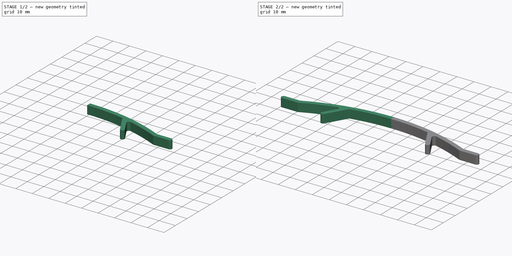
[diagram: build sequence overview — one tinted view per stage of 2, left to right]
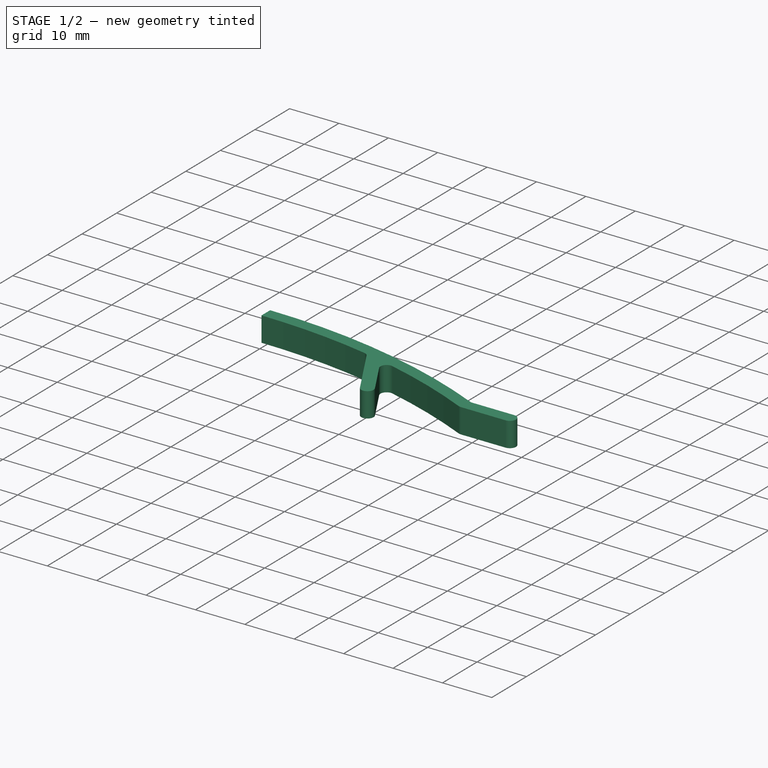
[diagram: stage 1 of 2 — iso view after this stage's code; geometry added in this stage tinted green]
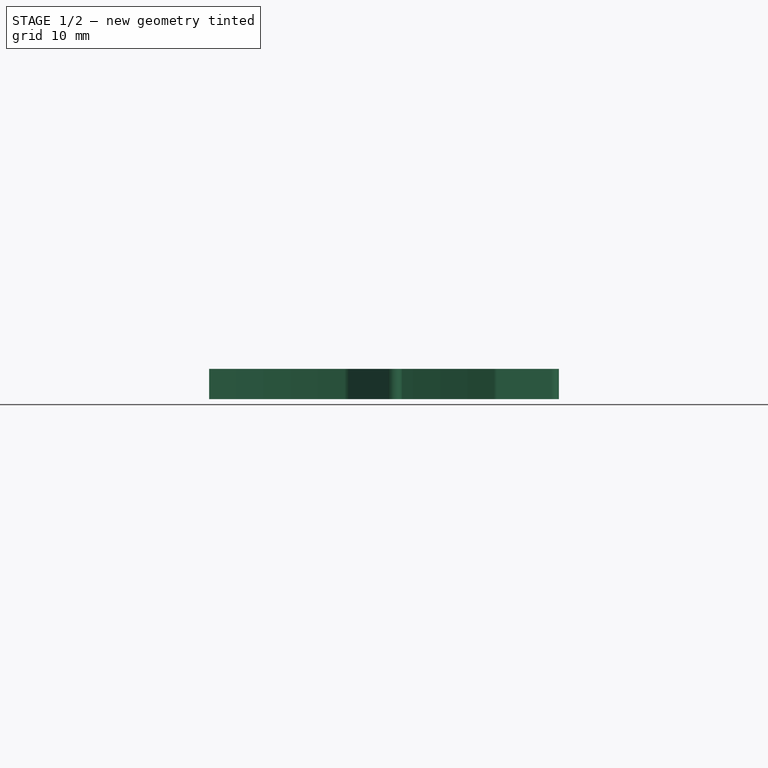
[diagram: stage 1 of 2 — front view after this stage's code; geometry added in this stage tinted green]
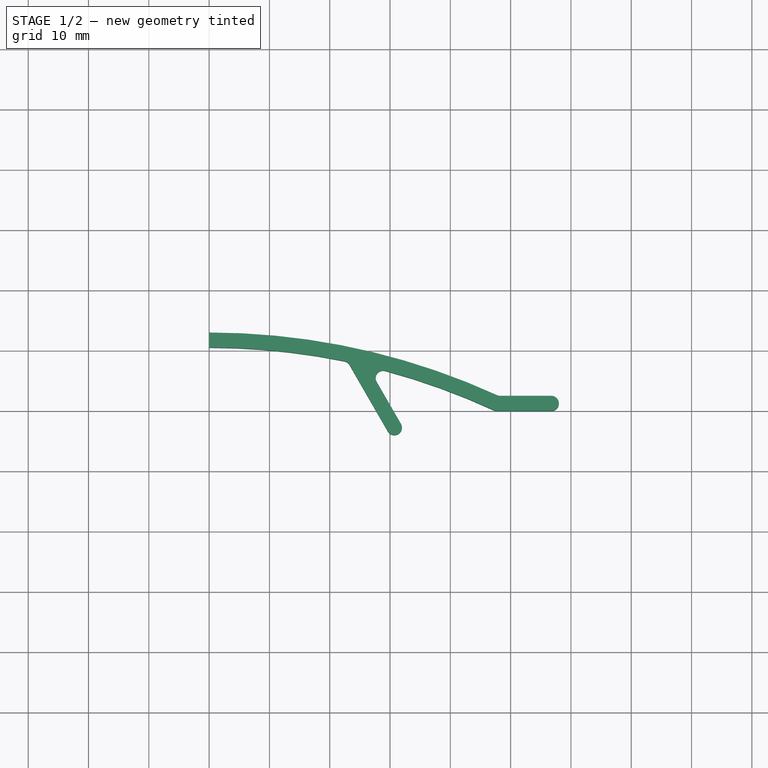
[diagram: stage 1 of 2 — top view after this stage's code; geometry added in this stage tinted green]
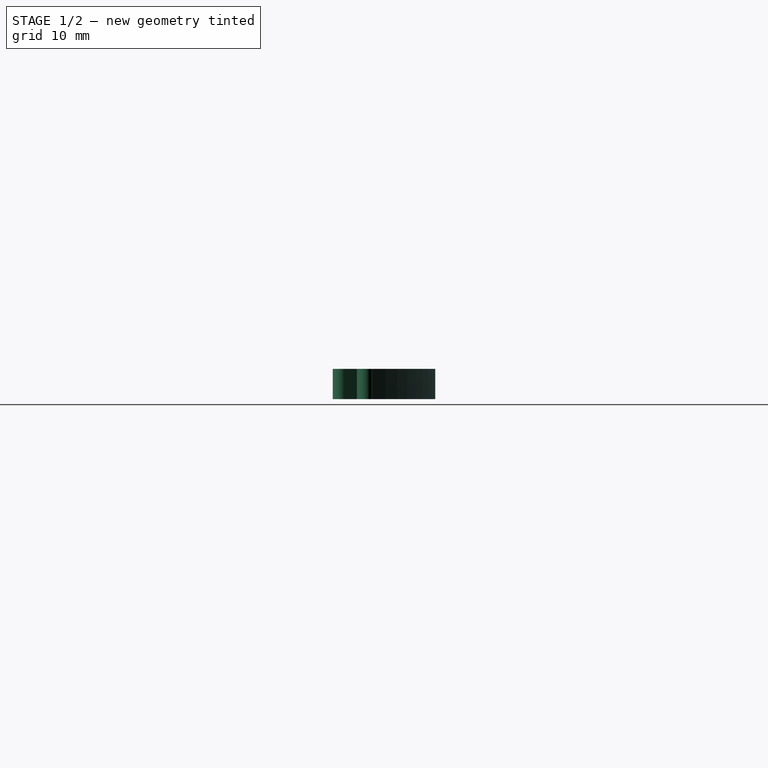
[diagram: stage 1 of 2 — right view after this stage's code; geometry added in this stage tinted green]
FCSTD DOCUMENT  (FreeCAD 1.0R39319 (Git))
Label: Carrier_Clamp
License: All rights reserved
LicenseURL: https://en.wikipedia.org/wiki/All_rights_reserved
objects: App::Link×1, Sketcher::SketchObject×1, PartDesign::Pad×1, PartDesign::Fillet×1, PartDesign::Mirrored×1, PartDesign::Body×1, App::Part×1
note: 11 computed .brp shape members not serialized (recipe doc carries the construction recipe); baked Part::Feature solids carry a one-line shape summary decoded from their .brp
EXTERNAL_REF file=Parameters.FCStd obj=Spreadsheet

FEATURE [App::Link] Link
  LinkedObject = -> <external Parameters.FCStd>#Spreadsheet
FEATURE [Sketcher::SketchObject] Sketch
  ArcFitTolerance = 1e-06
  AttachmentSupport = -> [XY_Plane001]
  FullyConstrained = true
  MakeInternals = false
  MapMode = 5
  sketch-geometry (10):
    g0: LineSegment StartX=0 StartY=10.5 StartZ=0 EndX=0 EndY=13 EndZ=0
    g1: ArcOfCircle CenterX=-7e-15 CenterY=-101.964 CenterZ=0 NormalX=0 NormalY=0 NormalZ=1 AngleXU=0 Radius=114.964 StartAngle=1.14008 EndAngle=1.5708
    g2: LineSegment StartX=48 StartY=2.5 StartZ=0 EndX=58 EndY=2.5 EndZ=0
    g3: LineSegment StartX=58 StartY=2.5 StartZ=0 EndX=58 EndY=-1.7053e-12 EndZ=0
    g4: LineSegment StartX=58 StartY=-1.7053e-12 StartZ=0 EndX=47.45 EndY=-1.7053e-12 EndZ=0
    g5: ArcOfCircle CenterX=-6.9e-15 CenterY=-101.964 CenterZ=0 NormalX=0 NormalY=0 NormalZ=1 AngleXU=0 Radius=112.464 StartAngle=1.36483 EndAngle=1.5708
    g6: LineSegment StartX=23.0009 StartY=8.12284 StartZ=0 EndX=30 EndY=-4 EndZ=0
    g7: LineSegment StartX=30 StartY=-4 StartZ=0 EndX=32.8868 EndY=-4 EndZ=0
    g8: LineSegment StartX=32.8868 StartY=-4 StartZ=0 EndX=26.3181 EndY=7.37725 EndZ=0
    g9: ArcOfCircle CenterX=0 CenterY=-101.964 CenterZ=0 NormalX=0 NormalY=0 NormalZ=1 AngleXU=0 Radius=112.464 StartAngle=1.13524 EndAngle=1.33459
  constraints (31):
    c: PointOnObject(g0,g-2)
    c: PointOnObject(g0,g-2)
    c: Perpendicular(g0,g1) = 1.5708
    c: Coincident(g1,g2)
    c: Horizontal(g2)
    c: Coincident(g2,g3)
    c: Coincident(g3,g4)
    c: Horizontal(g4)
    c: Perpendicular(g0,g5) = 1.5708
    c: Coincident(g5,g6)
    c: Coincident(g6,g7)
    c: Horizontal(g7)
    c: Coincident(g7,g8)
    c: Coincident(g9,g4)
    c: Coincident(g9,g8)
    c: Distance(g3,g2) = 2.5
    c: Distance(g7,g6) = 2.5
    c: Angle(g-2,g6) = 0.523599
    c: Parallel(g6,g8)
    c: Distance(g5,g1) = 2.5
    c: Distance(g0,g-1) = 13
    c: PointOnObject(g3,g-1)
    c: Vertical(g3)
    c: Distance(g-1,g3) = 58
    c: Distance(g1,g3) = 10
    c: Distance(g-1,g7) = 4
    c: Distance(g0,g0) = 2.5
    c: DistanceX(g-1,g6) = 30
    c: Tangent(g9,g5)
    c: DistanceX(g-1,g9) = 0
    c: DistanceY(g1,g9) = 0
FEATURE [PartDesign::Pad] Pad
  Direction = (0,0,1)
  Length = 5
  Length2 = 10
  Profile = -> Sketch
  ReferenceAxis = -> Sketch [N_Axis]
  Refine = true
  Suppressed = false
  Type = 0
FEATURE [PartDesign::Fillet] Fillet
  Base = -> Pad [Edge23,Edge26,Edge20,Edge14,Edge11,Edge17,Edge5,Edge8]
  BaseFeature = -> Pad
  Radius = 1.24
  Refine = true
  SupportTransform = false
  Suppressed = false
  UseAllEdges = false
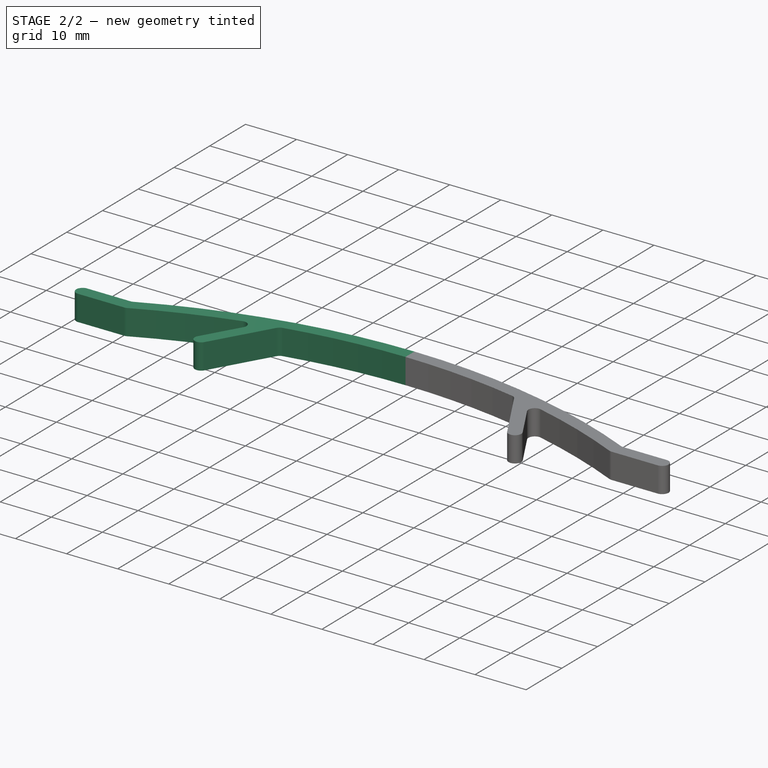
[diagram: stage 2 of 2 — iso view after this stage's code; geometry added in this stage tinted green]
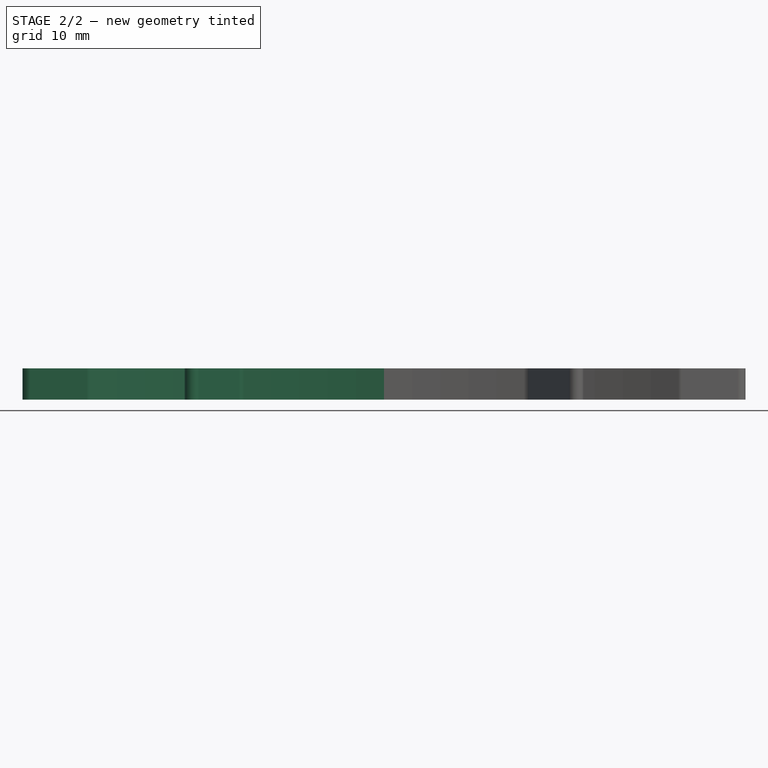
[diagram: stage 2 of 2 — front view after this stage's code; geometry added in this stage tinted green]
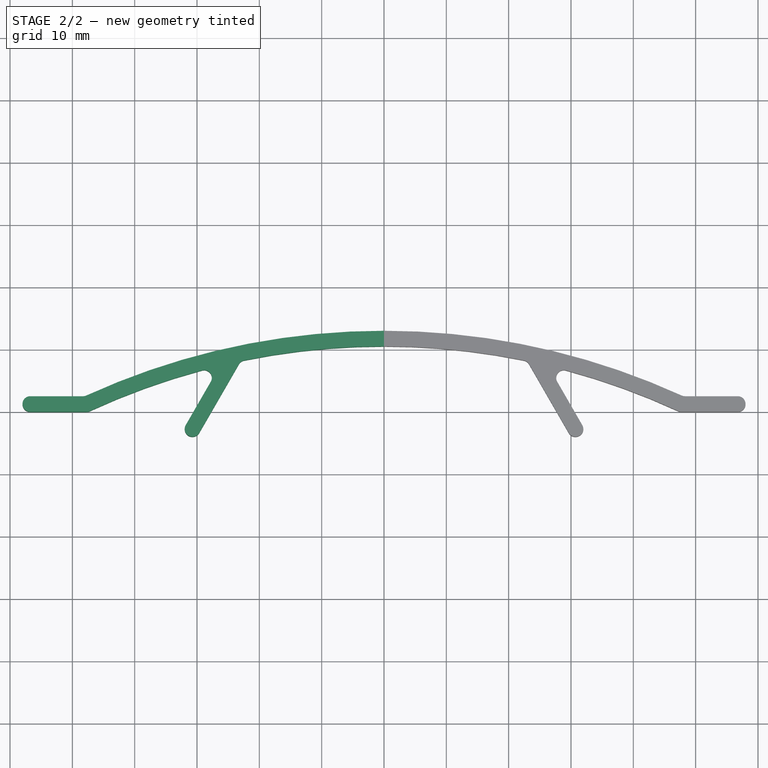
[diagram: stage 2 of 2 — top view after this stage's code; geometry added in this stage tinted green]
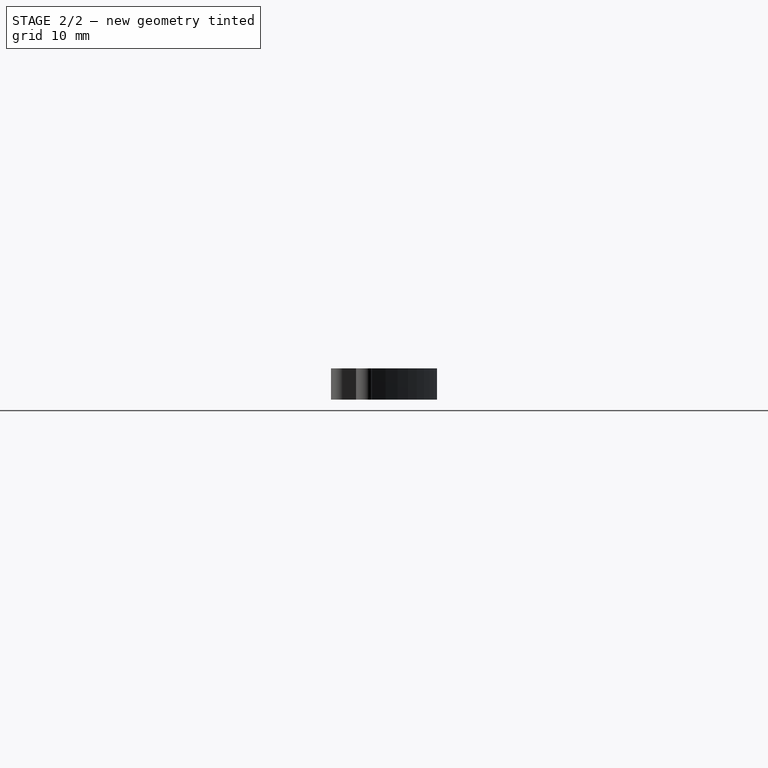
[diagram: stage 2 of 2 — right view after this stage's code; geometry added in this stage tinted green]
FEATURE [PartDesign::Mirrored] Mirrored
  BaseFeature = -> Fillet
  MirrorPlane = -> YZ_Plane001
  Refine = true
  Suppressed = false
  TransformMode = 1
FEATURE [PartDesign::Body] Body  label="Carrier_Clamp001"
  AllowCompound = false
  Group = -> [Sketch,Pad,Fillet,Mirrored]
  Origin = -> Origin001
  Tip = -> Mirrored
FEATURE [App::Part] Part  label="Carrier_Clamp"
  Group = -> [Body]
  Origin = -> Origin

RESOLVED EXTERNAL PARTS (link-assembly join: the EXTERNAL_REF files above that resolve inside this repo's crawl, each included once):
---- part Parameters.FCStd = doc fcstd_e8305cf92413 ----
FCSTD DOCUMENT  (FreeCAD 1.0R39319 (Git))
Label: Parameters
License: All rights reserved
LicenseURL: https://en.wikipedia.org/wiki/All_rights_reserved
objects: Spreadsheet::Sheet×1

FEATURE [Spreadsheet::Sheet] Spreadsheet
  cells = B1='Global; F1='Hole definitions; B2='stack_height; C2(stack_height)==87.5 mm; F2='M5_core_hole; G2(M5_core_hole)==4.7 mm; B3='inner_width; C3(inner_width)==56 mm; F3='M5_head_hole; G3(M5_head_hole)==9 mm; B4='arch_plane_z; C4(arch_plane_z)==82 mm; F4='M5_trough_hole; G4(M5_trough_hole)==6 mm; B5='slot_inner_width; C5(slot_inner_width)==51 mm; B6='floor_thickness; C6(floor_thickness)==3 mm; B8='front_hole_X; C8(front_hole_X)==66.5 mm; B9='front_hole_Z; C9(front_hole_Z)==6.5 mm; B10='back_hole_X; C10(back_hole_X)==63.5 mm; B11='back_hole_Z; C11(back_hole_Z)==122.5 mm; B13='inner_hole_X; C13(inner_hole_X)==50 mm; B14='inner_front_hole_Z; C14(inner_front_hole_Z)==9 mm; B15='inner_back_hole_Z; C15(inner_back_hole_Z)==76 mm
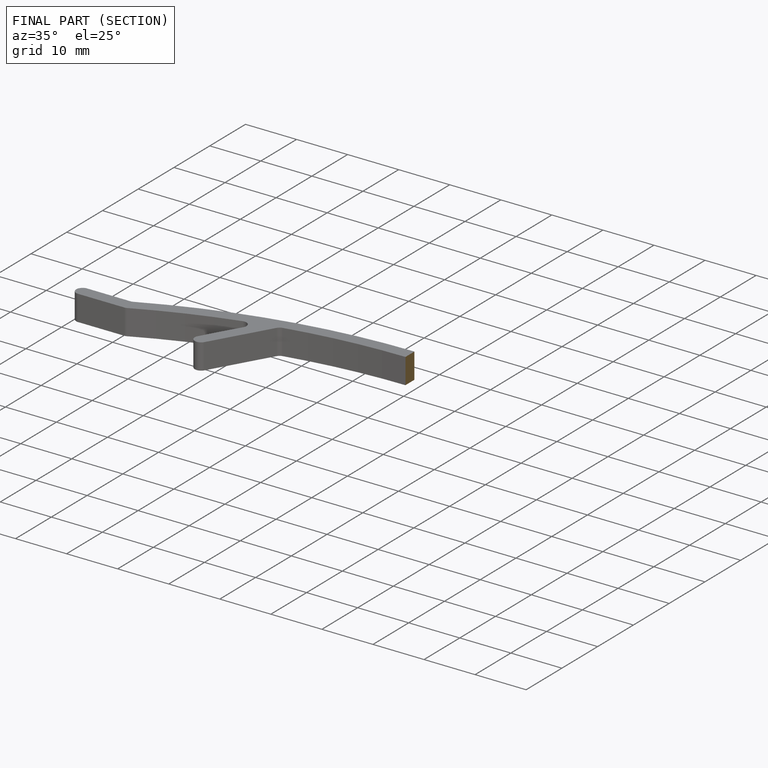
[diagram: finished part — half-section view (interior)]
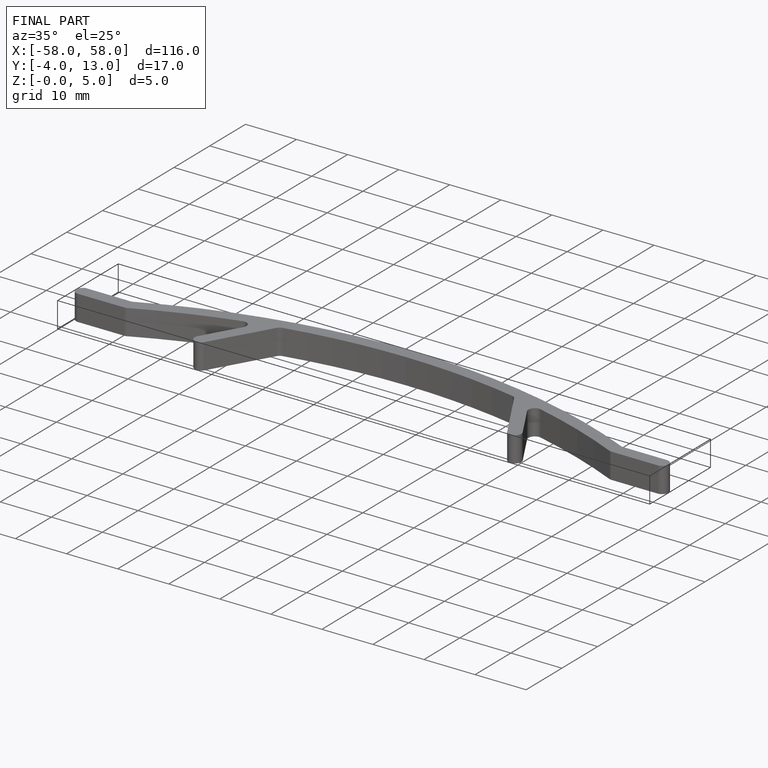
[diagram: finished part — iso view with bounding-box wireframe]
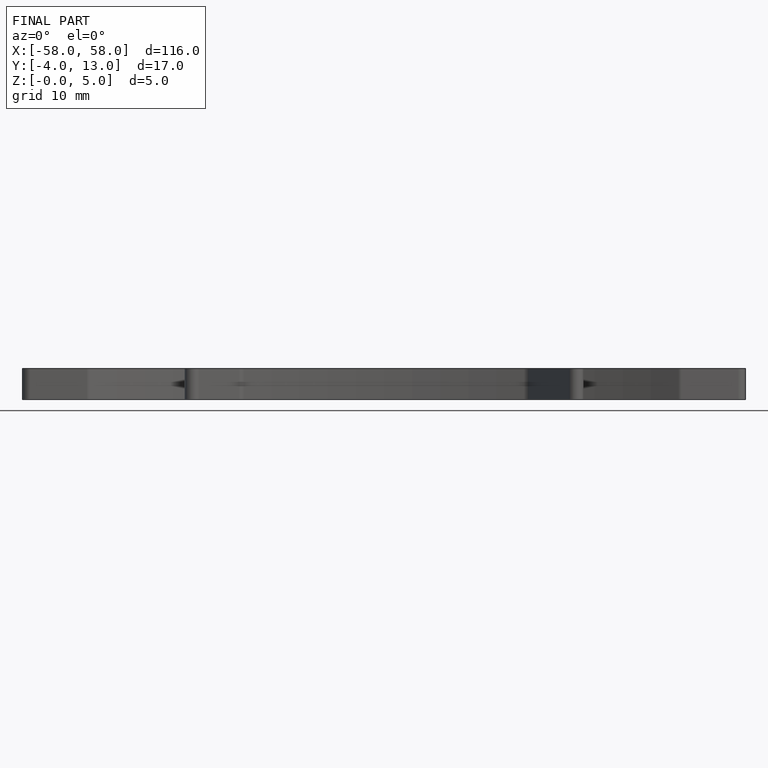
[diagram: finished part — front view with bounding-box wireframe]
